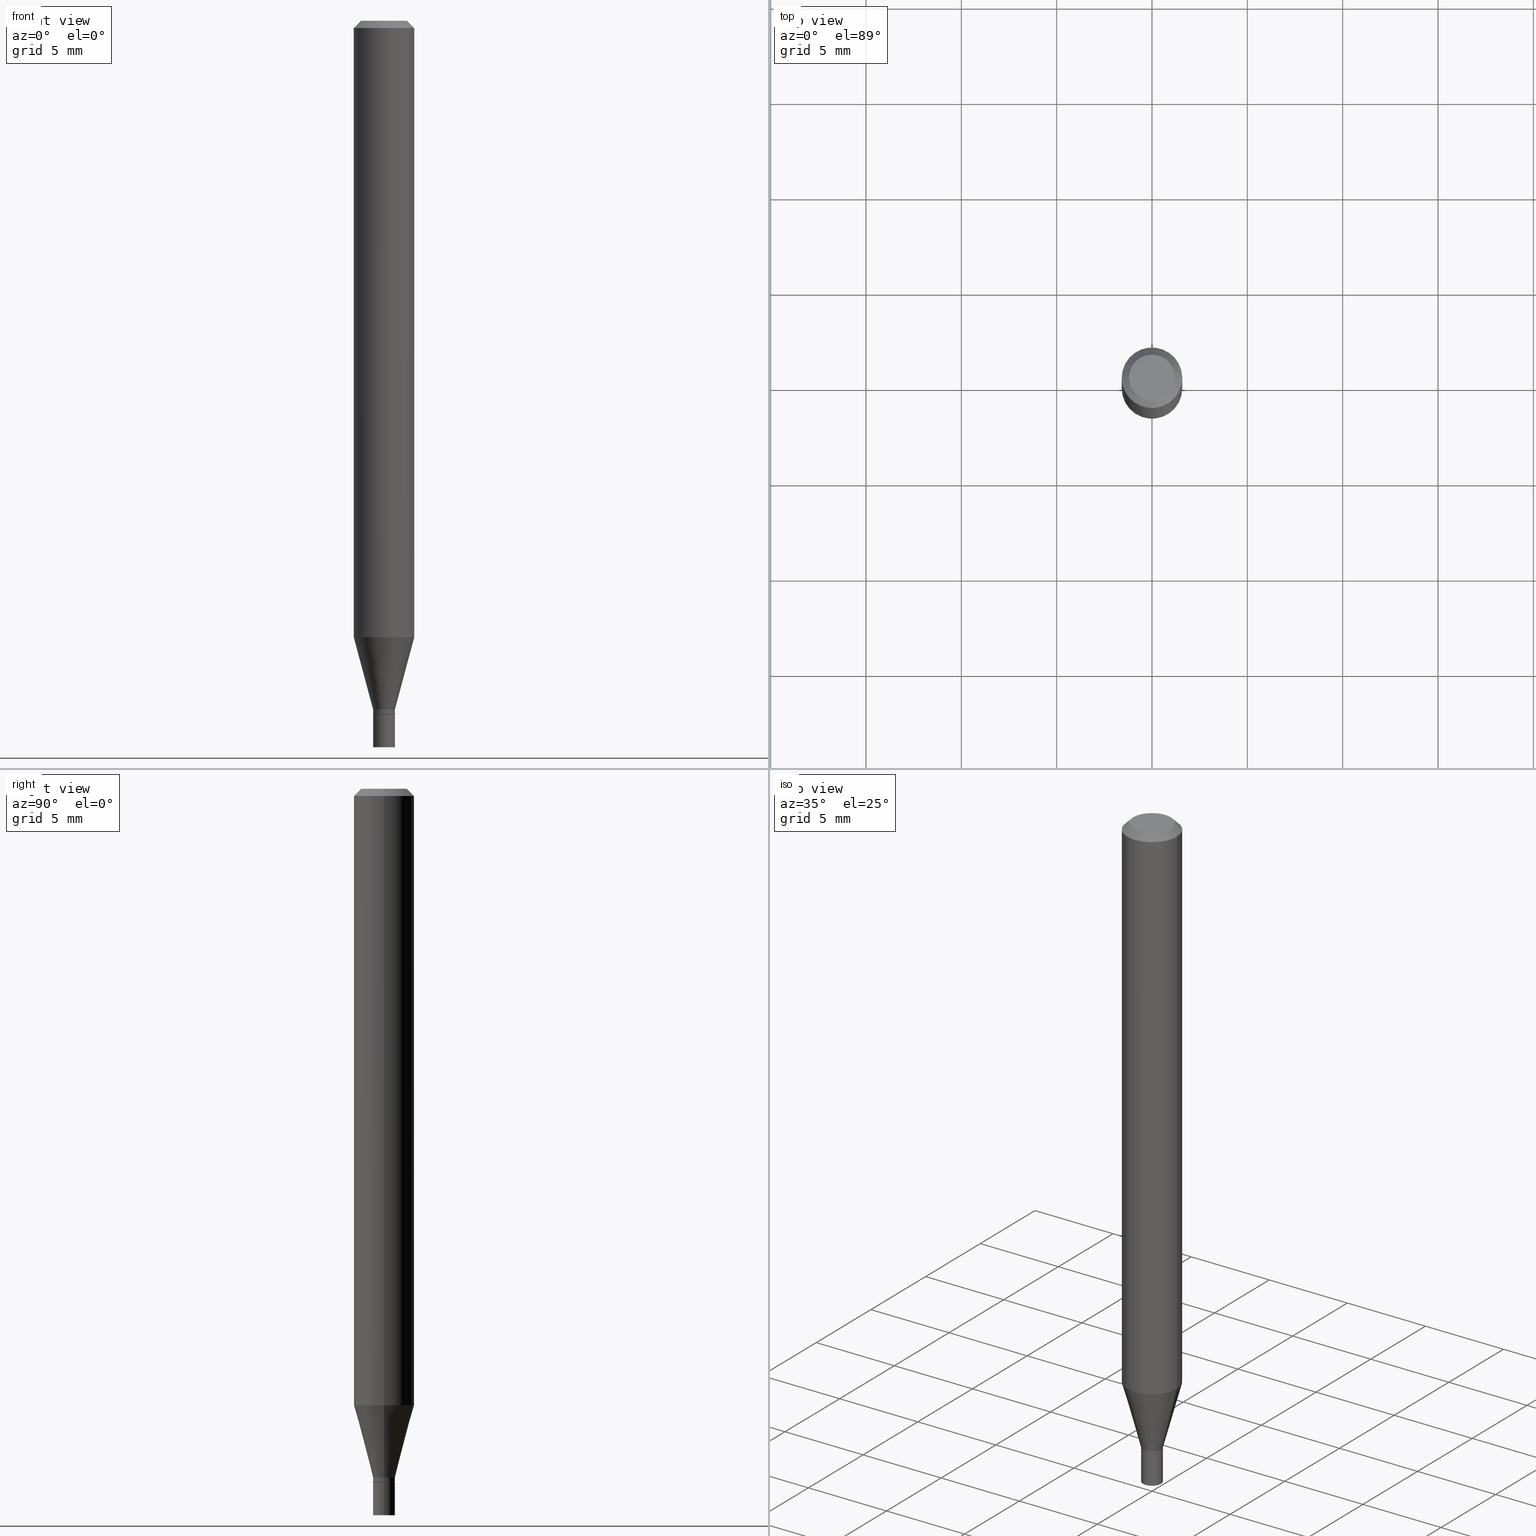
[diagram: canonical four-view strip — front | top / right | iso, engineering-drawing reading convention]
A machine part, canonical four-view strip (front | top / right | iso — engineering-drawing reading convention). The complete STEP part file that produces these views, byte-faithful:
ISO-10303-21;
HEADER;
FILE_DESCRIPTION (( 'STEP AP203' ),
    '1' );
FILE_NAME ('02372.STEP',
    '2024-03-18T20:16:54',
    ( '' ),
    ( '' ),
    'SwSTEP 2.0',
    'SolidWorks 2023',
    '' );
FILE_SCHEMA (( 'CONFIG_CONTROL_DESIGN' ));
ENDSEC;

DATA;
#1 = AXIS2_PLACEMENT_3D ( 'NONE', #422, #102, #460 ) ;
#2 = CARTESIAN_POINT ( 'NONE',  ( 0.06250000000000000000, -4.888073874380388472E-16, -0.01499999999999999944 ) ) ;
#3 = CC_DESIGN_SECURITY_CLASSIFICATION ( #42, ( #363 ) ) ;
#4 = DIRECTION ( 'NONE',  ( 1.000000000000000000, -6.982962677686266711E-15, 0.000000000000000000 ) ) ;
#5 = PLANE ( 'NONE',  #164 ) ;
#6 = CC_DESIGN_DATE_AND_TIME_ASSIGNMENT ( #448, #51, ( #89 ) ) ;
#7 = AXIS2_PLACEMENT_3D ( 'NONE', #31, #281, #175 ) ;
#8 = DIRECTION ( 'NONE',  ( -0.7071067811865656694, 7.493145998870420424E-15, 0.7071067811865294761 ) ) ;
#9 = AXIS2_PLACEMENT_3D ( 'NONE', #248, #388, #382 ) ;
#10 = APPROVAL_DATE_TIME ( #380, #198 ) ;
#11 = ORIENTED_EDGE ( 'NONE', *, *, #250, .F. ) ;
#12 =( NAMED_UNIT ( * ) SI_UNIT ( $, .STERADIAN. ) SOLID_ANGLE_UNIT ( ) );
#13 = SHAPE_DEFINITION_REPRESENTATION ( #282, #182 ) ;
#14 = DIRECTION ( 'NONE',  ( 1.000000000000000000, -6.982962677686266711E-15, 4.876176775795935793E-29 ) ) ;
#15 = EDGE_CURVE ( 'NONE', #411, #236, #100, .T. ) ;
#16 = CARTESIAN_POINT ( 'NONE',  ( -5.723698685194923234E-45, 8.171924785126947293E-31, 2.340532281875119882E-16 ) ) ;
#17 = CYLINDRICAL_SURFACE ( 'NONE', #303, 0.02249999999999999917 ) ;
#18 = VERTEX_POINT ( 'NONE', #124 ) ;
#19 = PERSON_AND_ORGANIZATION ( #26, #101 ) ;
#20 = CIRCLE ( 'NONE', #199, 0.06250000000000000000 ) ;
#21 = ORIENTED_EDGE ( 'NONE', *, *, #451, .T. ) ;
#22 = VERTEX_POINT ( 'NONE', #392 ) ;
#23 = ORIENTED_EDGE ( 'NONE', *, *, #69, .F. ) ;
#24 = CARTESIAN_POINT ( 'NONE',  ( 0.02249999999999999917, -1.571166602479409911E-16, 1.097139774554085483E-30 ) ) ;
#25 = ORIENTED_EDGE ( 'NONE', *, *, #237, .T. ) ;
#26 = PERSON ( 'UNSPECIFIED', 'UNSPECIFIED', 'UNSPECIFIED', ('UNSPECIFIED'), ('UNSPECIFIED'), ('UNSPECIFIED') ) ;
#27 = FACE_OUTER_BOUND ( 'NONE', #313, .T. ) ;
#28 = VERTEX_POINT ( 'NONE', #289 ) ;
#29 = DIRECTION ( 'NONE',  ( 1.000000000000000000, -6.982962677686265922E-15, 4.876176775795935793E-29 ) ) ;
#30 = LINE ( 'NONE', #463, #135 ) ;
#31 = CARTESIAN_POINT ( 'NONE',  ( 3.668203209277704895E-29, -5.237222008264718177E-15, -1.500000000000000222 ) ) ;
#32 = AXIS2_PLACEMENT_3D ( 'NONE', #275, #344, #68 ) ;
#33 = ADVANCED_FACE ( 'NONE', ( #255 ), #212, .F. ) ;
#34 = CYLINDRICAL_SURFACE ( 'NONE', #319, 0.02249999999999992284 ) ;
#35 = EDGE_CURVE ( 'NONE', #18, #370, #171, .T. ) ;
#36 = DIRECTION ( 'NONE',  ( -2.445468806185136597E-29, 3.491481338843145583E-15, 1.000000000000000000 ) ) ;
#37 = DIRECTION ( 'NONE',  ( -2.445468806185136597E-29, 3.491481338843145583E-15, 1.000000000000000000 ) ) ;
#38 = CARTESIAN_POINT ( 'NONE',  ( 0.06250000000000000000, -4.811533449433679005E-16, -0.01499999999999999944 ) ) ;
#39 = CIRCLE ( 'NONE', #227, 0.02249999999999999917 ) ;
#40 = CONICAL_SURFACE ( 'NONE', #252, 0.02199999999999999872, 0.7853981633974739252 ) ;
#41 = FACE_OUTER_BOUND ( 'NONE', #450, .T. ) ;
#42 = SECURITY_CLASSIFICATION ( '', '', #338 ) ;
#43 = EDGE_CURVE ( 'NONE', #201, #28, #64, .T. ) ;
#44 = DIRECTION ( 'NONE',  ( 2.445468806185136597E-29, -3.491481338843145583E-15, -1.000000000000000000 ) ) ;
#45 = CARTESIAN_POINT ( 'NONE',  ( -0.02199999999999999872, -4.843481875356163623E-15, -1.432000000000000162 ) ) ;
#46 = PERSON_AND_ORGANIZATION_ROLE ( 'design_supplier' ) ;
#47 = VECTOR ( 'NONE', #220, 39.37007874015748143 ) ;
#48 = LOCAL_TIME ( 16, 16, 54.00000000000000000, #440 ) ;
#49 = PERSON_AND_ORGANIZATION ( #26, #101 ) ;
#50 = EDGE_CURVE ( 'NONE', #304, #22, #72, .T. ) ;
#51 = DATE_TIME_ROLE ( 'creation_date' ) ;
#52 = ORIENTED_EDGE ( 'NONE', *, *, #442, .T. ) ;
#53 = APPROVAL_DATE_TIME ( #306, #75 ) ;
#54 = AXIS2_PLACEMENT_3D ( 'NONE', #111, #76, #217 ) ;
#55 = DESIGN_CONTEXT ( 'detailed design', #430, 'design' ) ;
#56 = LOCAL_TIME ( 16, 16, 54.00000000000000000, #190 ) ;
#57 = ORIENTED_EDGE ( 'NONE', *, *, #367, .F. ) ;
#58 = PERSON_AND_ORGANIZATION_ROLE ( 'creator' ) ;
#59 = ORIENTED_EDGE ( 'NONE', *, *, #375, .T. ) ;
#60 = CARTESIAN_POINT ( 'NONE',  ( -0.06250000000000000000, -1.803932417103912611E-15, -0.01499999999999999944 ) ) ;
#61 = EDGE_LOOP ( 'NONE', ( #345, #128, #240, #11 ) ) ;
#62 = DIRECTION ( 'NONE',  ( -2.445468806185136597E-29, 3.491481338843145583E-15, 1.000000000000000000 ) ) ;
#63 = EDGE_CURVE ( 'NONE', #18, #232, #393, .T. ) ;
#64 = CIRCLE ( 'NONE', #7, 0.02249999999999999917 ) ;
#65 = EDGE_LOOP ( 'NONE', ( #246, #447 ) ) ;
#66 = DIRECTION ( 'NONE',  ( -0.2588190451025205729, 5.211531920934544731E-15, 0.9659258262890682012 ) ) ;
#67 = VERTEX_POINT ( 'NONE', #323 ) ;
#68 = DIRECTION ( 'NONE',  ( 1.000000000000000000, -6.982962677686249356E-15, 0.000000000000000000 ) ) ;
#69 = EDGE_CURVE ( 'NONE', #381, #341, #187, .T. ) ;
#70 = EDGE_CURVE ( 'NONE', #341, #381, #84, .T. ) ;
#71 = CYLINDRICAL_SURFACE ( 'NONE', #1, 0.02249999999999999917 ) ;
#72 = CIRCLE ( 'NONE', #112, 0.02199999999999999872 ) ;
#73 = AXIS2_PLACEMENT_3D ( 'NONE', #80, #77, #218 ) ;
#74 = AXIS2_PLACEMENT_3D ( 'NONE', #443, #342, #200 ) ;
#75 = APPROVAL ( #160, 'UNSPECIFIED' ) ;
#76 = DIRECTION ( 'NONE',  ( -2.445468806185136597E-29, 3.491481338843145583E-15, 1.000000000000000000 ) ) ;
#77 = DIRECTION ( 'NONE',  ( -2.445468806185136597E-29, 3.491481338843145583E-15, 1.000000000000000000 ) ) ;
#78 = CARTESIAN_POINT ( 'NONE',  ( 3.501911330457115844E-29, -4.999801277223385014E-15, -1.432000000000000162 ) ) ;
#79 = CIRCLE ( 'NONE', #108, 0.04749999999999999362 ) ;
#80 = CARTESIAN_POINT ( 'NONE',  ( 3.668203209277704895E-29, -5.237222008264718177E-15, -1.500000000000000222 ) ) ;
#81 = ORIENTED_EDGE ( 'NONE', *, *, #50, .T. ) ;
#82 = CARTESIAN_POINT ( 'NONE',  ( -0.02249999999999992284, -4.838183421007942799E-15, -1.431500000000000217 ) ) ;
#83 = ORIENTED_EDGE ( 'NONE', *, *, #131, .F. ) ;
#84 = CIRCLE ( 'NONE', #180, 0.02249999999999992284 ) ;
#85 =( GEOMETRIC_REPRESENTATION_CONTEXT ( 3 ) GLOBAL_UNCERTAINTY_ASSIGNED_CONTEXT ( ( #249 ) ) GLOBAL_UNIT_ASSIGNED_CONTEXT ( ( #91, #308, #12 ) ) REPRESENTATION_CONTEXT ( 'NONE', 'WORKASPACE' ) );
#86 = COORDINATED_UNIVERSAL_TIME_OFFSET ( 5, 0, .BEHIND. ) ;
#87 = EDGE_CURVE ( 'NONE', #341, #204, #337, .T. ) ;
#88 = DATE_AND_TIME ( #406, #280 ) ;
#89 = PRODUCT_DEFINITION ( 'UNKNOWN', '', #363, #55 ) ;
#90 = ORIENTED_EDGE ( 'NONE', *, *, #233, .F. ) ;
#91 =( CONVERSION_BASED_UNIT ( 'INCH', #379 ) LENGTH_UNIT ( ) NAMED_UNIT ( #139 ) );
#92 = CIRCLE ( 'NONE', #99, 0.04749999999999999362 ) ;
#93 = ORIENTED_EDGE ( 'NONE', *, *, #70, .F. ) ;
#94 = ORIENTED_EDGE ( 'NONE', *, *, #35, .F. ) ;
#95 = DIRECTION ( 'NONE',  ( -2.445468806185136597E-29, 3.491481338843145583E-15, 1.000000000000000000 ) ) ;
#96 = EDGE_LOOP ( 'NONE', ( #81, #298, #93, #292 ) ) ;
#97 = DIRECTION ( 'NONE',  ( 0.2588190451025205729, 1.565188264969627490E-15, 0.9659258262890682012 ) ) ;
#98 = VECTOR ( 'NONE', #213, 39.37007874015748143 ) ;
#99 = AXIS2_PLACEMENT_3D ( 'NONE', #384, #62, #424 ) ;
#100 = LINE ( 'NONE', #407, #214 ) ;
#101 = ORGANIZATION ( 'UNSPECIFIED', 'UNSPECIFIED', '' ) ;
#102 = DIRECTION ( 'NONE',  ( -2.445468806185136597E-29, 3.491481338843145583E-15, 1.000000000000000000 ) ) ;
#103 = PRODUCT ( '02372', '02372', '', ( #120 ) ) ;
#104 = CYLINDRICAL_SURFACE ( 'NONE', #347, 0.02249999999999992284 ) ;
#105 = CARTESIAN_POINT ( 'NONE',  ( 3.112392089074953397E-29, -4.443671033825302981E-15, -1.272717967697244434 ) ) ;
#106 = CARTESIAN_POINT ( 'NONE',  ( 3.501911330457115844E-29, -4.999801277223385014E-15, -1.432000000000000162 ) ) ;
#107 = DIRECTION ( 'NONE',  ( -2.445468806185136597E-29, 3.491481338843145583E-15, 1.000000000000000000 ) ) ;
#108 = AXIS2_PLACEMENT_3D ( 'NONE', #16, #192, #404 ) ;
#109 = DIRECTION ( 'NONE',  ( 1.000000000000000000, -6.982962677686266711E-15, 4.876176775795935793E-29 ) ) ;
#110 = DIRECTION ( 'NONE',  ( -2.445468806185136877E-29, 3.491481338843145188E-15, 1.000000000000000000 ) ) ;
#111 = CARTESIAN_POINT ( 'NONE',  ( 3.477456642395264859E-29, -4.964886463834953365E-15, -1.421999999999999931 ) ) ;
#112 = AXIS2_PLACEMENT_3D ( 'NONE', #138, #425, #464 ) ;
#113 = ORIENTED_EDGE ( 'NONE', *, *, #245, .T. ) ;
#114 = CONICAL_SURFACE ( 'NONE', #54, 0.02249999999999991937, 0.2617993877991492968 ) ;
#115 = CARTESIAN_POINT ( 'NONE',  ( -0.04749999999999999362, 3.578768372314215436E-16, 2.340532281875096216E-16 ) ) ;
#116 = EDGE_LOOP ( 'NONE', ( #209, #315, #242, #335 ) ) ;
#117 = CALENDAR_DATE ( 2024, 18, 3 ) ;
#118 = CARTESIAN_POINT ( 'NONE',  ( 3.501911330457115844E-29, -4.999801277223385014E-15, -1.432000000000000162 ) ) ;
#119 = ORIENTED_EDGE ( 'NONE', *, *, #172, .T. ) ;
#120 = MECHANICAL_CONTEXT ( 'NONE', #359, 'mechanical' ) ;
#121 = AXIS2_PLACEMENT_3D ( 'NONE', #391, #132, #205 ) ;
#122 = APPROVAL_ROLE ( '' ) ;
#123 = ADVANCED_FACE ( 'NONE', ( #193 ), #17, .T. ) ;
#124 = CARTESIAN_POINT ( 'NONE',  ( 0.06250000000000000000, -4.880106201180694651E-15, -1.272717967697244434 ) ) ;
#125 = PERSON_AND_ORGANIZATION ( #26, #101 ) ;
#126 = ORIENTED_EDGE ( 'NONE', *, *, #153, .T. ) ;
#127 = CIRCLE ( 'NONE', #121, 0.06250000000000000000 ) ;
#128 = ORIENTED_EDGE ( 'NONE', *, *, #194, .T. ) ;
#129 = LINE ( 'NONE', #208, #206 ) ;
#130 = EDGE_LOOP ( 'NONE', ( #350, #165, #309, #168 ) ) ;
#131 = EDGE_CURVE ( 'NONE', #334, #439, #39, .T. ) ;
#132 = DIRECTION ( 'NONE',  ( -2.445468806185136597E-29, 3.491481338843145583E-15, 1.000000000000000000 ) ) ;
#133 = EDGE_LOOP ( 'NONE', ( #195, #229 ) ) ;
#134 = CARTESIAN_POINT ( 'NONE',  ( 0.02249999999999991937, -5.122003124082893419E-15, -1.421999999999999931 ) ) ;
#135 = VECTOR ( 'NONE', #97, 39.37007874015748854 ) ;
#136 = CARTESIAN_POINT ( 'NONE',  ( 3.477456642395264859E-29, -4.964886463834953365E-15, -1.421999999999999931 ) ) ;
#137 = PRODUCT_RELATED_PRODUCT_CATEGORY ( 'detail', '', ( #103 ) ) ;
#138 = CARTESIAN_POINT ( 'NONE',  ( 3.501911330457115844E-29, -4.999801277223385014E-15, -1.432000000000000162 ) ) ;
#139 = DIMENSIONAL_EXPONENTS ( 1.000000000000000000, 0.000000000000000000, 0.000000000000000000, 0.000000000000000000, 0.000000000000000000, 0.000000000000000000, 0.000000000000000000 ) ;
#140 = FACE_OUTER_BOUND ( 'NONE', #307, .T. ) ;
#141 = CARTESIAN_POINT ( 'NONE',  ( 3.500688596054023603E-29, -4.998055536553963510E-15, -1.431500000000000217 ) ) ;
#142 = FACE_OUTER_BOUND ( 'NONE', #223, .T. ) ;
#143 = CIRCLE ( 'NONE', #32, 0.02249999999999991937 ) ;
#144 = EDGE_CURVE ( 'NONE', #439, #334, #286, .T. ) ;
#145 = DIRECTION ( 'NONE',  ( -2.445468806185136597E-29, 3.491481338843145583E-15, 1.000000000000000000 ) ) ;
#146 = FACE_OUTER_BOUND ( 'NONE', #452, .T. ) ;
#147 = CARTESIAN_POINT ( 'NONE',  ( 3.576687321579069994E-29, -5.368277968210015545E-15, -1.500000000000000222 ) ) ;
#148 = ADVANCED_FACE ( 'NONE', ( #163 ), #426, .F. ) ;
#149 = LINE ( 'NONE', #253, #400 ) ;
#150 = CC_DESIGN_PERSON_AND_ORGANIZATION_ASSIGNMENT ( #403, #437, ( #89 ) ) ;
#151 = CALENDAR_DATE ( 2024, 18, 3 ) ;
#152 = DIRECTION ( 'NONE',  ( -2.445468806185136597E-29, 3.491481338843145583E-15, 1.000000000000000000 ) ) ;
#153 = EDGE_CURVE ( 'NONE', #385, #204, #143, .T. ) ;
#154 = VECTOR ( 'NONE', #239, 39.37007874015748143 ) ;
#155 = PERSON_AND_ORGANIZATION_ROLE ( 'classification_officer' ) ;
#156 = LOCAL_TIME ( 16, 16, 54.00000000000000000, #225 ) ;
#157 = LOCAL_TIME ( 16, 16, 54.00000000000000000, #86 ) ;
#158 = DIRECTION ( 'NONE',  ( -0.7071067811865420216, 2.468850131082199474E-15, -0.7071067811865530128 ) ) ;
#159 = ORIENTED_EDGE ( 'NONE', *, *, #237, .F. ) ;
#160 = APPROVAL_STATUS ( 'not_yet_approved' ) ;
#161 = EDGE_CURVE ( 'NONE', #232, #236, #170, .T. ) ;
#162 = ORIENTED_EDGE ( 'NONE', *, *, #245, .F. ) ;
#163 = FACE_OUTER_BOUND ( 'NONE', #133, .T. ) ;
#164 = AXIS2_PLACEMENT_3D ( 'NONE', #147, #254, #185 ) ;
#165 = ORIENTED_EDGE ( 'NONE', *, *, #367, .T. ) ;
#166 = APPROVAL_ROLE ( '' ) ;
#167 = DIRECTION ( 'NONE',  ( 1.000000000000000000, -6.982962677686265922E-15, 4.876176775795935793E-29 ) ) ;
#168 = ORIENTED_EDGE ( 'NONE', *, *, #172, .F. ) ;
#169 = EDGE_CURVE ( 'NONE', #204, #385, #215, .T. ) ;
#170 = LINE ( 'NONE', #415, #98 ) ;
#171 = LINE ( 'NONE', #318, #311 ) ;
#172 = EDGE_CURVE ( 'NONE', #201, #439, #241, .T. ) ;
#173 = FACE_OUTER_BOUND ( 'NONE', #116, .T. ) ;
#174 = APPROVAL_PERSON_ORGANIZATION ( #125, #257, #122 ) ;
#175 = DIRECTION ( 'NONE',  ( 1.000000000000000000, -6.982962677686269077E-15, 0.000000000000000000 ) ) ;
#176 = CARTESIAN_POINT ( 'NONE',  ( 0.000000000000000000, 0.000000000000000000, 0.000000000000000000 ) ) ;
#177 = DIRECTION ( 'NONE',  ( 1.000000000000000000, -6.982962677686262766E-15, 0.000000000000000000 ) ) ;
#178 = CARTESIAN_POINT ( 'NONE',  ( -0.02249999999999992284, 1.598721155460219936E-16, -1.106760395307350101E-30 ) ) ;
#179 = CARTESIAN_POINT ( 'NONE',  ( 3.668203209277705088E-31, -5.237222008264718399E-17, -0.01499999999999999944 ) ) ;
#180 = AXIS2_PLACEMENT_3D ( 'NONE', #366, #331, #295 ) ;
#181 = CONICAL_SURFACE ( 'NONE', #234, 0.02199999999999999872, 0.7853981633974739252 ) ;
#182 = ADVANCED_BREP_SHAPE_REPRESENTATION ( '02372', ( #417, #413, #74 ), #85 ) ;
#183 = CYLINDRICAL_SURFACE ( 'NONE', #420, 0.06250000000000000000 ) ;
#184 = FACE_OUTER_BOUND ( 'NONE', #259, .T. ) ;
#185 = DIRECTION ( 'NONE',  ( 1.000000000000000000, -6.982962677686265922E-15, 4.876176775795935793E-29 ) ) ;
#186 = ADVANCED_FACE ( 'NONE', ( #418 ), #104, .T. ) ;
#187 = CIRCLE ( 'NONE', #301, 0.02249999999999992284 ) ;
#188 = ORIENTED_EDGE ( 'NONE', *, *, #250, .T. ) ;
#189 = VECTOR ( 'NONE', #395, 39.37007874015748143 ) ;
#190 = COORDINATED_UNIVERSAL_TIME_OFFSET ( 5, 0, .BEHIND. ) ;
#191 = ORIENTED_EDGE ( 'NONE', *, *, #466, .T. ) ;
#192 = DIRECTION ( 'NONE',  ( -2.445468806185136597E-29, 3.491481338843145583E-15, 1.000000000000000000 ) ) ;
#193 = FACE_OUTER_BOUND ( 'NONE', #130, .T. ) ;
#194 = EDGE_CURVE ( 'NONE', #385, #232, #283, .T. ) ;
#195 = ORIENTED_EDGE ( 'NONE', *, *, #50, .F. ) ;
#196 = PERSON_AND_ORGANIZATION ( #26, #101 ) ;
#197 = ORIENTED_EDGE ( 'NONE', *, *, #87, .T. ) ;
#198 = APPROVAL ( #299, 'UNSPECIFIED' ) ;
#199 = AXIS2_PLACEMENT_3D ( 'NONE', #179, #325, #4 ) ;
#200 = DIRECTION ( 'NONE',  ( 1.000000000000000000, 0.000000000000000000, 0.000000000000000000 ) ) ;
#201 = VERTEX_POINT ( 'NONE', #457 ) ;
#202 = ORIENTED_EDGE ( 'NONE', *, *, #63, .T. ) ;
#203 = DIRECTION ( 'NONE',  ( -2.445468806185136597E-29, 3.491481338843145583E-15, 1.000000000000000000 ) ) ;
#204 = VERTEX_POINT ( 'NONE', #134 ) ;
#205 = DIRECTION ( 'NONE',  ( 1.000000000000000000, -6.982962677686266711E-15, 0.000000000000000000 ) ) ;
#206 = VECTOR ( 'NONE', #278, 39.37007874015748143 ) ;
#207 = ORIENTED_EDGE ( 'NONE', *, *, #43, .F. ) ;
#208 = CARTESIAN_POINT ( 'NONE',  ( 0.02199999999999999872, -5.153426456132482850E-15, -1.432000000000000162 ) ) ;
#209 = ORIENTED_EDGE ( 'NONE', *, *, #70, .T. ) ;
#210 = CC_DESIGN_PERSON_AND_ORGANIZATION_ASSIGNMENT ( #19, #155, ( #42 ) ) ;
#211 = CARTESIAN_POINT ( 'NONE',  ( -0.02249999999999991937, -4.805014348288931075E-15, -1.421999999999999931 ) ) ;
#212 = PLANE ( 'NONE',  #346 ) ;
#213 = DIRECTION ( 'NONE',  ( -2.445468806185136877E-29, 3.491481338843145188E-15, 1.000000000000000000 ) ) ;
#214 = VECTOR ( 'NONE', #158, 39.37007874015748143 ) ;
#215 = CIRCLE ( 'NONE', #294, 0.02249999999999991937 ) ;
#216 = CC_DESIGN_APPROVAL ( #257, ( #363 ) ) ;
#217 = DIRECTION ( 'NONE',  ( 1.000000000000000000, -6.982962677686249356E-15, 0.000000000000000000 ) ) ;
#218 = DIRECTION ( 'NONE',  ( 1.000000000000000000, -6.982962677686269077E-15, 0.000000000000000000 ) ) ;
#219 = DIRECTION ( 'NONE',  ( -1.000000000000000000, 6.982962677686265922E-15, -4.876176775795935793E-29 ) ) ;
#220 = DIRECTION ( 'NONE',  ( -2.445468806185136877E-29, 3.491481338843145188E-15, 1.000000000000000000 ) ) ;
#221 = VECTOR ( 'NONE', #8, 39.37007874015748143 ) ;
#222 = DIRECTION ( 'NONE',  ( -2.445468806185136597E-29, 3.491481338843145583E-15, 1.000000000000000000 ) ) ;
#223 = EDGE_LOOP ( 'NONE', ( #267, #126, #188, #159 ) ) ;
#224 = DIRECTION ( 'NONE',  ( 2.438088387897960049E-29, -3.491481338843145188E-15, -1.000000000000000000 ) ) ;
#225 = COORDINATED_UNIVERSAL_TIME_OFFSET ( 5, 0, .BEHIND. ) ;
#226 = DIRECTION ( 'NONE',  ( -2.445468806185136597E-29, 3.491481338843145583E-15, 1.000000000000000000 ) ) ;
#227 = AXIS2_PLACEMENT_3D ( 'NONE', #118, #152, #302 ) ;
#228 = APPLICATION_PROTOCOL_DEFINITION ( 'international standard', 'config_control_design', 1994, #359 ) ;
#229 = ORIENTED_EDGE ( 'NONE', *, *, #375, .F. ) ;
#230 = PERSON_AND_ORGANIZATION_ROLE ( 'design_owner' ) ;
#231 = CALENDAR_DATE ( 2024, 18, 3 ) ;
#232 = VERTEX_POINT ( 'NONE', #455 ) ;
#233 = EDGE_CURVE ( 'NONE', #411, #67, #92, .T. ) ;
#234 = AXIS2_PLACEMENT_3D ( 'NONE', #106, #37, #398 ) ;
#235 = CALENDAR_DATE ( 2024, 18, 3 ) ;
#236 = VERTEX_POINT ( 'NONE', #60 ) ;
#237 = EDGE_CURVE ( 'NONE', #232, #18, #270, .T. ) ;
#238 = PERSON_AND_ORGANIZATION ( #26, #101 ) ;
#239 = DIRECTION ( 'NONE',  ( -2.445468806185136877E-29, 3.491481338843145188E-15, 1.000000000000000000 ) ) ;
#240 = ORIENTED_EDGE ( 'NONE', *, *, #63, .F. ) ;
#241 = LINE ( 'NONE', #24, #154 ) ;
#242 = ORIENTED_EDGE ( 'NONE', *, *, #169, .F. ) ;
#243 = DIRECTION ( 'NONE',  ( 1.000000000000000000, -6.982962677686249356E-15, 0.000000000000000000 ) ) ;
#244 = AXIS2_PLACEMENT_3D ( 'NONE', #285, #44, #293 ) ;
#245 = EDGE_CURVE ( 'NONE', #370, #236, #127, .T. ) ;
#246 = ORIENTED_EDGE ( 'NONE', *, *, #144, .T. ) ;
#247 = CARTESIAN_POINT ( 'NONE',  ( 0.000000000000000000, 0.000000000000000000, 0.000000000000000000 ) ) ;
#248 = CARTESIAN_POINT ( 'NONE',  ( 3.112392089074953397E-29, -4.443671033825302981E-15, -1.272717967697244434 ) ) ;
#249 = UNCERTAINTY_MEASURE_WITH_UNIT (LENGTH_MEASURE( 1.000000000000000082E-05 ), #91, 'distance_accuracy_value', 'NONE');
#250 = EDGE_CURVE ( 'NONE', #204, #18, #30, .T. ) ;
#251 = FACE_OUTER_BOUND ( 'NONE', #269, .T. ) ;
#252 = AXIS2_PLACEMENT_3D ( 'NONE', #435, #222, #361 ) ;
#253 = CARTESIAN_POINT ( 'NONE',  ( -0.02249999999999999917, 1.598721155460225359E-16, -1.106760395307353780E-30 ) ) ;
#254 = DIRECTION ( 'NONE',  ( -2.438088387897960049E-29, 3.491481338843145188E-15, 1.000000000000000000 ) ) ;
#255 = FACE_OUTER_BOUND ( 'NONE', #65, .T. ) ;
#256 = DIRECTION ( 'NONE',  ( 1.000000000000000000, -6.982962677686245411E-15, 0.000000000000000000 ) ) ;
#257 = APPROVAL ( #408, 'UNSPECIFIED' ) ;
#258 = AXIS2_PLACEMENT_3D ( 'NONE', #260, #402, #109 ) ;
#259 = EDGE_LOOP ( 'NONE', ( #207, #273 ) ) ;
#260 = CARTESIAN_POINT ( 'NONE',  ( 0.000000000000000000, 0.000000000000000000, 0.000000000000000000 ) ) ;
#261 = CARTESIAN_POINT ( 'NONE',  ( 0.02249999999999992284, -1.571166602479404488E-16, 1.097139774554081805E-30 ) ) ;
#262 = ORIENTED_EDGE ( 'NONE', *, *, #161, .F. ) ;
#263 = AXIS2_PLACEMENT_3D ( 'NONE', #314, #203, #243 ) ;
#264 = PERSON_AND_ORGANIZATION ( #26, #101 ) ;
#265 = DIRECTION ( 'NONE',  ( -2.445468806185136597E-29, 3.491481338843145583E-15, 1.000000000000000000 ) ) ;
#266 = COORDINATED_UNIVERSAL_TIME_OFFSET ( 5, 0, .BEHIND. ) ;
#267 = ORIENTED_EDGE ( 'NONE', *, *, #194, .F. ) ;
#268 = APPLICATION_PROTOCOL_DEFINITION ( 'international standard', 'config_control_design', 1994, #430 ) ;
#269 = EDGE_LOOP ( 'NONE', ( #202, #416, #162, #94 ) ) ;
#270 = CIRCLE ( 'NONE', #9, 0.06250000000000000000 ) ;
#271 = ORIENTED_EDGE ( 'NONE', *, *, #69, .T. ) ;
#272 = DIRECTION ( 'NONE',  ( 1.000000000000000000, -6.982962677686269077E-15, 0.000000000000000000 ) ) ;
#273 = ORIENTED_EDGE ( 'NONE', *, *, #423, .F. ) ;
#274 = EDGE_CURVE ( 'NONE', #304, #341, #129, .T. ) ;
#275 = CARTESIAN_POINT ( 'NONE',  ( 3.477456642395264859E-29, -4.964886463834953365E-15, -1.421999999999999931 ) ) ;
#276 = ORIENTED_EDGE ( 'NONE', *, *, #274, .T. ) ;
#277 = AXIS2_PLACEMENT_3D ( 'NONE', #317, #461, #353 ) ;
#278 = DIRECTION ( 'NONE',  ( 0.7071067811865656694, -2.468850131082446387E-15, 0.7071067811865294761 ) ) ;
#279 = CC_DESIGN_PERSON_AND_ORGANIZATION_ASSIGNMENT ( #49, #46, ( #363 ) ) ;
#280 = LOCAL_TIME ( 16, 16, 54.00000000000000000, #266 ) ;
#281 = DIRECTION ( 'NONE',  ( -2.445468806185136597E-29, 3.491481338843145583E-15, 1.000000000000000000 ) ) ;
#282 = PRODUCT_DEFINITION_SHAPE ( 'NONE', 'NONE',  #89 ) ;
#283 = LINE ( 'NONE', #211, #428 ) ;
#284 = FACE_OUTER_BOUND ( 'NONE', #61, .T. ) ;
#285 = CARTESIAN_POINT ( 'NONE',  ( 3.668203209277705088E-31, -5.237222008264718399E-17, -0.01499999999999999944 ) ) ;
#286 = CIRCLE ( 'NONE', #287, 0.02249999999999999917 ) ;
#287 = AXIS2_PLACEMENT_3D ( 'NONE', #446, #265, #272 ) ;
#288 = CARTESIAN_POINT ( 'NONE',  ( -0.02249999999999999917, -4.958639527198029700E-15, -1.432000000000000162 ) ) ;
#289 = CARTESIAN_POINT ( 'NONE',  ( -0.02249999999999999917, -4.958639527198029700E-15, -1.500000000000000222 ) ) ;
#290 = CARTESIAN_POINT ( 'NONE',  ( 0.02249999999999999917, -5.156917937471325857E-15, -1.432000000000000162 ) ) ;
#291 = ADVANCED_FACE ( 'NONE', ( #140 ), #339, .T. ) ;
#292 = ORIENTED_EDGE ( 'NONE', *, *, #274, .F. ) ;
#293 = DIRECTION ( 'NONE',  ( -1.000000000000000000, 6.982962677686266711E-15, 0.000000000000000000 ) ) ;
#294 = AXIS2_PLACEMENT_3D ( 'NONE', #136, #95, #320 ) ;
#295 = DIRECTION ( 'NONE',  ( 1.000000000000000000, -6.982962677686248567E-15, 0.000000000000000000 ) ) ;
#296 = DIRECTION ( 'NONE',  ( -1.000000000000000000, 6.982962677686265922E-15, -4.876176775795935793E-29 ) ) ;
#297 = DIRECTION ( 'NONE',  ( -2.445468806185136877E-29, 3.491481338843145188E-15, 1.000000000000000000 ) ) ;
#298 = ORIENTED_EDGE ( 'NONE', *, *, #431, .T. ) ;
#299 = APPROVAL_STATUS ( 'not_yet_approved' ) ;
#300 = ORIENTED_EDGE ( 'NONE', *, *, #451, .F. ) ;
#301 = AXIS2_PLACEMENT_3D ( 'NONE', #141, #107, #427 ) ;
#302 = DIRECTION ( 'NONE',  ( 1.000000000000000000, -6.982962677686269077E-15, 0.000000000000000000 ) ) ;
#303 = AXIS2_PLACEMENT_3D ( 'NONE', #438, #226, #14 ) ;
#304 = VERTEX_POINT ( 'NONE', #348 ) ;
#305 = APPROVAL_PERSON_ORGANIZATION ( #405, #75, #374 ) ;
#306 = DATE_AND_TIME ( #231, #56 ) ;
#307 = EDGE_LOOP ( 'NONE', ( #310, #52, #113, #414 ) ) ;
#308 =( NAMED_UNIT ( * ) PLANE_ANGLE_UNIT ( ) SI_UNIT ( $, .RADIAN. ) );
#309 = ORIENTED_EDGE ( 'NONE', *, *, #144, .F. ) ;
#310 = ORIENTED_EDGE ( 'NONE', *, *, #466, .F. ) ;
#311 = VECTOR ( 'NONE', #462, 39.37007874015748143 ) ;
#312 = CARTESIAN_POINT ( 'NONE',  ( 3.501911330457115844E-29, -4.999801277223385014E-15, -1.432000000000000162 ) ) ;
#313 = EDGE_LOOP ( 'NONE', ( #57, #434, #119, #83 ) ) ;
#314 = CARTESIAN_POINT ( 'NONE',  ( 3.477456642395264859E-29, -4.964886463834953365E-15, -1.421999999999999931 ) ) ;
#315 = ORIENTED_EDGE ( 'NONE', *, *, #449, .T. ) ;
#316 = ADVANCED_FACE ( 'NONE', ( #27 ), #71, .T. ) ;
#317 = CARTESIAN_POINT ( 'NONE',  ( 3.668203209277705088E-31, -5.237222008264718399E-17, -0.01499999999999999944 ) ) ;
#318 = CARTESIAN_POINT ( 'NONE',  ( 0.06250000000000000000, -4.364351673553916694E-16, 3.047610484872459871E-30 ) ) ;
#319 = AXIS2_PLACEMENT_3D ( 'NONE', #176, #321, #167 ) ;
#320 = DIRECTION ( 'NONE',  ( 1.000000000000000000, -6.982962677686249356E-15, 0.000000000000000000 ) ) ;
#321 = DIRECTION ( 'NONE',  ( -2.445468806185136597E-29, 3.491481338843145583E-15, 1.000000000000000000 ) ) ;
#322 = ADVANCED_FACE ( 'NONE', ( #173 ), #34, .T. ) ;
#323 = CARTESIAN_POINT ( 'NONE',  ( 0.04749999999999999362, -4.035134999187574186E-16, 2.340532281875146013E-16 ) ) ;
#324 = FACE_OUTER_BOUND ( 'NONE', #419, .T. ) ;
#325 = DIRECTION ( 'NONE',  ( -2.445468806185136597E-29, 3.491481338843145583E-15, 1.000000000000000000 ) ) ;
#326 = CLOSED_SHELL ( 'NONE', ( #322, #409, #291, #412, #328, #372, #459, #397, #340, #148, #360, #186 ) ) ;
#327 = AXIS2_PLACEMENT_3D ( 'NONE', #312, #386, #29 ) ;
#328 = ADVANCED_FACE ( 'NONE', ( #284 ), #436, .T. ) ;
#329 = CARTESIAN_POINT ( 'NONE',  ( 0.000000000000000000, 0.000000000000000000, 0.000000000000000000 ) ) ;
#330 = CARTESIAN_POINT ( 'NONE',  ( 3.316907271900976096E-16, 0.04749999999999999362, -4.881874950129340235E-17 ) ) ;
#331 = DIRECTION ( 'NONE',  ( -2.445468806185136597E-29, 3.491481338843145583E-15, 1.000000000000000000 ) ) ;
#332 = PLANE ( 'NONE',  #394 ) ;
#333 = ADVANCED_FACE ( 'NONE', ( #184 ), #5, .F. ) ;
#334 = VERTEX_POINT ( 'NONE', #288 ) ;
#335 = ORIENTED_EDGE ( 'NONE', *, *, #87, .F. ) ;
#336 =( LENGTH_UNIT ( ) NAMED_UNIT ( * ) SI_UNIT ( $, .METRE. ) );
#337 = LINE ( 'NONE', #261, #373 ) ;
#338 = SECURITY_CLASSIFICATION_LEVEL ( 'unclassified' ) ;
#339 = CONICAL_SURFACE ( 'NONE', #277, 0.06250000000000000000, 0.7853981633974405074 ) ;
#340 = ADVANCED_FACE ( 'NONE', ( #324 ), #332, .F. ) ;
#341 = VERTEX_POINT ( 'NONE', #365 ) ;
#342 = DIRECTION ( 'NONE',  ( 0.000000000000000000, 0.000000000000000000, 1.000000000000000000 ) ) ;
#343 = ORIENTED_EDGE ( 'NONE', *, *, #431, .F. ) ;
#344 = DIRECTION ( 'NONE',  ( -2.445468806185136597E-29, 3.491481338843145583E-15, 1.000000000000000000 ) ) ;
#345 = ORIENTED_EDGE ( 'NONE', *, *, #169, .T. ) ;
#346 = AXIS2_PLACEMENT_3D ( 'NONE', #389, #356, #219 ) ;
#347 = AXIS2_PLACEMENT_3D ( 'NONE', #247, #355, #351 ) ;
#348 = CARTESIAN_POINT ( 'NONE',  ( 0.02199999999999999872, -5.153426456132482850E-15, -1.432000000000000162 ) ) ;
#349 = CC_DESIGN_PERSON_AND_ORGANIZATION_ASSIGNMENT ( #196, #58, ( #363 ) ) ;
#350 = ORIENTED_EDGE ( 'NONE', *, *, #43, .T. ) ;
#351 = DIRECTION ( 'NONE',  ( 1.000000000000000000, -6.982962677686265922E-15, 4.876176775795935793E-29 ) ) ;
#352 = ORIENTED_EDGE ( 'NONE', *, *, #442, .F. ) ;
#353 = DIRECTION ( 'NONE',  ( -1.000000000000000000, 6.982962677686266711E-15, 0.000000000000000000 ) ) ;
#354 = CLOSED_SHELL ( 'NONE', ( #123, #333, #316, #33 ) ) ;
#355 = DIRECTION ( 'NONE',  ( -2.445468806185136597E-29, 3.491481338843145583E-15, 1.000000000000000000 ) ) ;
#356 = DIRECTION ( 'NONE',  ( 2.438088387897960049E-29, -3.491481338843145188E-15, -1.000000000000000000 ) ) ;
#357 = LINE ( 'NONE', #178, #47 ) ;
#358 = LINE ( 'NONE', #38, #189 ) ;
#359 = APPLICATION_CONTEXT ( 'configuration controlled 3d designs of mechanical parts and assemblies' ) ;
#360 = ADVANCED_FACE ( 'NONE', ( #432 ), #181, .T. ) ;
#361 = DIRECTION ( 'NONE',  ( 1.000000000000000000, -6.982962677686245411E-15, 0.000000000000000000 ) ) ;
#362 = AXIS2_PLACEMENT_3D ( 'NONE', #78, #145, #256 ) ;
#363 = PRODUCT_DEFINITION_FORMATION_WITH_SPECIFIED_SOURCE ( 'ANY', '', #103, .NOT_KNOWN. ) ;
#364 = CC_DESIGN_PERSON_AND_ORGANIZATION_ASSIGNMENT ( #264, #230, ( #103 ) ) ;
#365 = CARTESIAN_POINT ( 'NONE',  ( 0.02249999999999992284, -5.155172196801903565E-15, -1.431500000000000217 ) ) ;
#366 = CARTESIAN_POINT ( 'NONE',  ( 3.500688596054023603E-29, -4.998055536553963510E-15, -1.431500000000000217 ) ) ;
#367 = EDGE_CURVE ( 'NONE', #28, #334, #149, .T. ) ;
#368 = EDGE_LOOP ( 'NONE', ( #454, #271, #197, #458 ) ) ;
#369 = LINE ( 'NONE', #45, #221 ) ;
#370 = VERTEX_POINT ( 'NONE', #2 ) ;
#371 = DATE_AND_TIME ( #117, #157 ) ;
#372 = ADVANCED_FACE ( 'NONE', ( #142 ), #114, .T. ) ;
#373 = VECTOR ( 'NONE', #297, 39.37007874015748143 ) ;
#374 = APPROVAL_ROLE ( '' ) ;
#375 = EDGE_CURVE ( 'NONE', #22, #304, #445, .T. ) ;
#376 = DATE_TIME_ROLE ( 'classification_date' ) ;
#377 = ORIENTED_EDGE ( 'NONE', *, *, #15, .T. ) ;
#378 = CC_DESIGN_APPROVAL ( #75, ( #89 ) ) ;
#379 = LENGTH_MEASURE_WITH_UNIT ( LENGTH_MEASURE( 0.02539999999999999897 ), #336 );
#380 = DATE_AND_TIME ( #235, #48 ) ;
#381 = VERTEX_POINT ( 'NONE', #82 ) ;
#382 = DIRECTION ( 'NONE',  ( 1.000000000000000000, -6.982962677686262766E-15, 0.000000000000000000 ) ) ;
#383 = EDGE_LOOP ( 'NONE', ( #343, #59, #276, #23 ) ) ;
#384 = CARTESIAN_POINT ( 'NONE',  ( -5.723698685194923234E-45, 8.171924785126947293E-31, 2.340532281875119882E-16 ) ) ;
#385 = VERTEX_POINT ( 'NONE', #465 ) ;
#386 = DIRECTION ( 'NONE',  ( -2.438088387897960049E-29, 3.491481338843145188E-15, 1.000000000000000000 ) ) ;
#387 = ORIENTED_EDGE ( 'NONE', *, *, #233, .T. ) ;
#388 = DIRECTION ( 'NONE',  ( -2.445468806185136597E-29, 3.491481338843145583E-15, 1.000000000000000000 ) ) ;
#389 = CARTESIAN_POINT ( 'NONE',  ( 1.571166602479759968E-16, 0.02249999999999499969, -1.432000000000000162 ) ) ;
#390 = CC_DESIGN_DATE_AND_TIME_ASSIGNMENT ( #88, #376, ( #42 ) ) ;
#391 = CARTESIAN_POINT ( 'NONE',  ( 3.668203209277705088E-31, -5.237222008264718399E-17, -0.01499999999999999944 ) ) ;
#392 = CARTESIAN_POINT ( 'NONE',  ( -0.02199999999999999872, -4.840832648182052422E-15, -1.432000000000000162 ) ) ;
#393 = CIRCLE ( 'NONE', #444, 0.06250000000000000000 ) ;
#394 = AXIS2_PLACEMENT_3D ( 'NONE', #330, #224, #296 ) ;
#395 = DIRECTION ( 'NONE',  ( 0.7071067811865420216, -7.319954787623237113E-15, -0.7071067811865530128 ) ) ;
#396 = FACE_OUTER_BOUND ( 'NONE', #96, .T. ) ;
#397 = ADVANCED_FACE ( 'NONE', ( #146 ), #453, .T. ) ;
#398 = DIRECTION ( 'NONE',  ( 1.000000000000000000, -6.982962677686245411E-15, 0.000000000000000000 ) ) ;
#399 = DIRECTION ( 'NONE',  ( 1.000000000000000000, -6.982962677686266711E-15, 4.876176775795935793E-29 ) ) ;
#400 = VECTOR ( 'NONE', #110, 39.37007874015748143 ) ;
#401 = CC_DESIGN_APPROVAL ( #198, ( #42 ) ) ;
#402 = DIRECTION ( 'NONE',  ( -2.445468806185136597E-29, 3.491481338843145583E-15, 1.000000000000000000 ) ) ;
#403 = PERSON_AND_ORGANIZATION ( #26, #101 ) ;
#404 = DIRECTION ( 'NONE',  ( 1.000000000000000000, -6.982962677686267499E-15, 4.852736867747366768E-29 ) ) ;
#405 = PERSON_AND_ORGANIZATION ( #26, #101 ) ;
#406 = CALENDAR_DATE ( 2024, 18, 3 ) ;
#407 = CARTESIAN_POINT ( 'NONE',  ( -0.06250000000000000000, 3.840629472727444916E-16, -0.01499999999999999944 ) ) ;
#408 = APPROVAL_STATUS ( 'not_yet_approved' ) ;
#409 = ADVANCED_FACE ( 'NONE', ( #396 ), #40, .T. ) ;
#410 = CIRCLE ( 'NONE', #73, 0.02249999999999999917 ) ;
#411 = VERTEX_POINT ( 'NONE', #115 ) ;
#412 = ADVANCED_FACE ( 'NONE', ( #251 ), #429, .T. ) ;
#413 = MANIFOLD_SOLID_BREP ( 'Body-Move/Copy2[2]', #326 ) ;
#414 = ORIENTED_EDGE ( 'NONE', *, *, #15, .F. ) ;
#415 = CARTESIAN_POINT ( 'NONE',  ( -0.06250000000000000000, 4.440892098500626162E-16, -3.074334431409316114E-30 ) ) ;
#416 = ORIENTED_EDGE ( 'NONE', *, *, #161, .T. ) ;
#417 = MANIFOLD_SOLID_BREP ( 'Body-Move/Copy2[1]', #354 ) ;
#418 = FACE_OUTER_BOUND ( 'NONE', #368, .T. ) ;
#419 = EDGE_LOOP ( 'NONE', ( #387, #191 ) ) ;
#420 = AXIS2_PLACEMENT_3D ( 'NONE', #329, #433, #399 ) ;
#421 = APPROVAL_PERSON_ORGANIZATION ( #238, #198, #166 ) ;
#422 = CARTESIAN_POINT ( 'NONE',  ( 0.000000000000000000, 0.000000000000000000, 0.000000000000000000 ) ) ;
#423 = EDGE_CURVE ( 'NONE', #28, #201, #410, .T. ) ;
#424 = DIRECTION ( 'NONE',  ( 1.000000000000000000, -6.982962677686267499E-15, 4.852736867747366768E-29 ) ) ;
#425 = DIRECTION ( 'NONE',  ( -2.445468806185136597E-29, 3.491481338843145583E-15, 1.000000000000000000 ) ) ;
#426 = PLANE ( 'NONE',  #327 ) ;
#427 = DIRECTION ( 'NONE',  ( 1.000000000000000000, -6.982962677686248567E-15, 0.000000000000000000 ) ) ;
#428 = VECTOR ( 'NONE', #66, 39.37007874015748854 ) ;
#429 = CYLINDRICAL_SURFACE ( 'NONE', #258, 0.06250000000000000000 ) ;
#430 = APPLICATION_CONTEXT ( 'configuration controlled 3d designs of mechanical parts and assemblies' ) ;
#431 = EDGE_CURVE ( 'NONE', #22, #381, #369, .T. ) ;
#432 = FACE_OUTER_BOUND ( 'NONE', #383, .T. ) ;
#433 = DIRECTION ( 'NONE',  ( -2.445468806185136597E-29, 3.491481338843145583E-15, 1.000000000000000000 ) ) ;
#434 = ORIENTED_EDGE ( 'NONE', *, *, #423, .T. ) ;
#435 = CARTESIAN_POINT ( 'NONE',  ( 3.501911330457115844E-29, -4.999801277223385014E-15, -1.432000000000000162 ) ) ;
#436 = CONICAL_SURFACE ( 'NONE', #263, 0.02249999999999991937, 0.2617993877991492968 ) ;
#437 = PERSON_AND_ORGANIZATION_ROLE ( 'creator' ) ;
#438 = CARTESIAN_POINT ( 'NONE',  ( 0.000000000000000000, 0.000000000000000000, 0.000000000000000000 ) ) ;
#439 = VERTEX_POINT ( 'NONE', #290 ) ;
#440 = COORDINATED_UNIVERSAL_TIME_OFFSET ( 5, 0, .BEHIND. ) ;
#441 = APPROVAL_DATE_TIME ( #371, #257 ) ;
#442 = EDGE_CURVE ( 'NONE', #67, #370, #358, .T. ) ;
#443 = CARTESIAN_POINT ( 'NONE',  ( 0.000000000000000000, 0.000000000000000000, 0.000000000000000000 ) ) ;
#444 = AXIS2_PLACEMENT_3D ( 'NONE', #105, #36, #177 ) ;
#445 = CIRCLE ( 'NONE', #362, 0.02199999999999999872 ) ;
#446 = CARTESIAN_POINT ( 'NONE',  ( 3.501911330457115844E-29, -4.999801277223385014E-15, -1.432000000000000162 ) ) ;
#447 = ORIENTED_EDGE ( 'NONE', *, *, #131, .T. ) ;
#448 = DATE_AND_TIME ( #151, #156 ) ;
#449 = EDGE_CURVE ( 'NONE', #381, #385, #357, .T. ) ;
#450 = EDGE_LOOP ( 'NONE', ( #262, #25, #456, #300 ) ) ;
#451 = EDGE_CURVE ( 'NONE', #236, #370, #20, .T. ) ;
#452 = EDGE_LOOP ( 'NONE', ( #352, #90, #377, #21 ) ) ;
#453 = CONICAL_SURFACE ( 'NONE', #244, 0.06250000000000000000, 0.7853981633974405074 ) ;
#454 = ORIENTED_EDGE ( 'NONE', *, *, #449, .F. ) ;
#455 = CARTESIAN_POINT ( 'NONE',  ( -0.06250000000000000000, -3.999581823975240365E-15, -1.272717967697244434 ) ) ;
#456 = ORIENTED_EDGE ( 'NONE', *, *, #35, .T. ) ;
#457 = CARTESIAN_POINT ( 'NONE',  ( 0.02249999999999999917, -5.394338668512659809E-15, -1.500000000000000222 ) ) ;
#458 = ORIENTED_EDGE ( 'NONE', *, *, #153, .F. ) ;
#459 = ADVANCED_FACE ( 'NONE', ( #41 ), #183, .T. ) ;
#460 = DIRECTION ( 'NONE',  ( 1.000000000000000000, -6.982962677686266711E-15, 4.876176775795935793E-29 ) ) ;
#461 = DIRECTION ( 'NONE',  ( 2.445468806185136597E-29, -3.491481338843145583E-15, -1.000000000000000000 ) ) ;
#462 = DIRECTION ( 'NONE',  ( -2.445468806185136877E-29, 3.491481338843145188E-15, 1.000000000000000000 ) ) ;
#463 = CARTESIAN_POINT ( 'NONE',  ( 0.02249999999999991937, -5.122003124082893419E-15, -1.421999999999999931 ) ) ;
#464 = DIRECTION ( 'NONE',  ( 1.000000000000000000, -6.982962677686245411E-15, 0.000000000000000000 ) ) ;
#465 = CARTESIAN_POINT ( 'NONE',  ( -0.02249999999999991937, -4.402298086132085720E-15, -1.421999999999999931 ) ) ;
#466 = EDGE_CURVE ( 'NONE', #67, #411, #79, .T. ) ;
ENDSEC;
END-ISO-10303-21;
